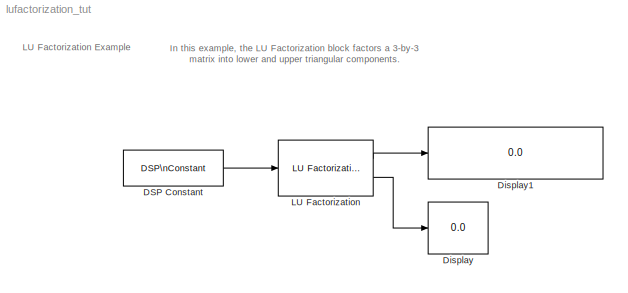
MODEL lufactorization_tut
KIND model
CONFIG AbsTol = auto
CONFIG FixedStep = auto
CONFIG MaxStep = auto
CONFIG MinStep = auto
CONFIG PostLoadFcn = set_param(gcs,'SimulationCommand','Update')
CONFIG RelTol = 1e-3
CONFIG Solver = FixedStepDiscrete
CONFIG SolverMode = Auto
CONFIG StartTime = 0.0
CONFIG StopTime = 10.0
BLOCK [Reference] DSP Constant  REF=dspsrcs3/DSP\nConstant
  FramebasedOutput = off
  InterpretAs1D = off
  Ports = [0, 1]
  SampleMode = Discrete
  SourceBlock = dspsrcs3/DSP\nConstant
  SourceType = DSP Constant
  Ts = 1
  Value = [1 -2 3;4 0 6;2 -1 3]
BLOCK [Display] Display
  Decimation = 1
  Floating = off
  Format = short
  Ports = [1]
  SampleTime = -1
BLOCK [Display] Display1
  Decimation = 1
  Floating = off
  Format = short
  Ports = [1]
  SampleTime = -1
BLOCK [Reference] LU Factorization  REF=dspfactors/LU Factorization
  Ports = [1, 2]
  SourceBlock = dspfactors/LU Factorization
  SourceType = LU Factorization
LINE DSP Constant:1 -> LU Factorization:1
LINE LU Factorization:1 -> Display1:1
LINE LU Factorization:2 -> Display:1
